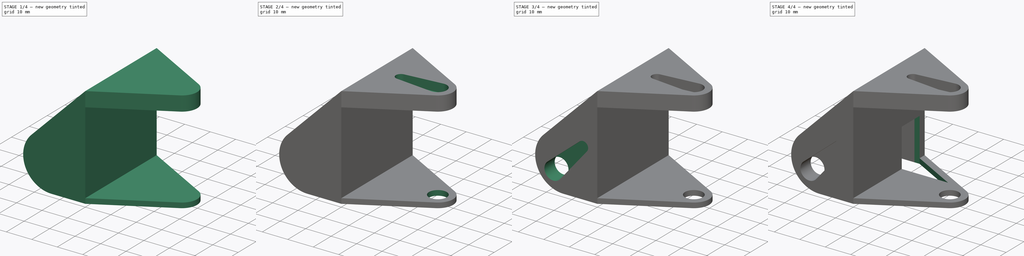
[diagram: build sequence overview — one tinted view per stage of 4, left to right]
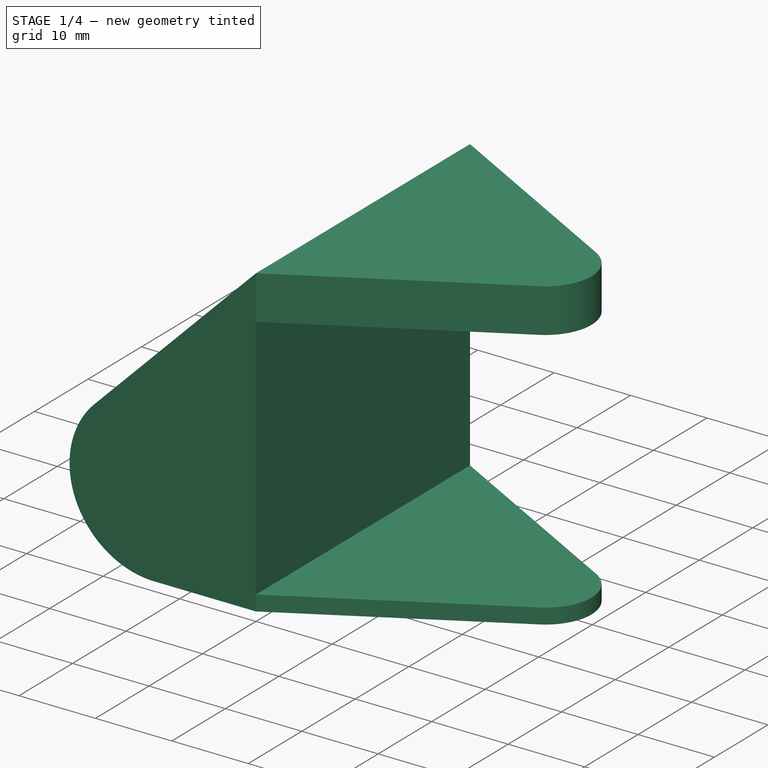
[diagram: stage 1 of 4 — iso view after this stage's code; geometry added in this stage tinted green]
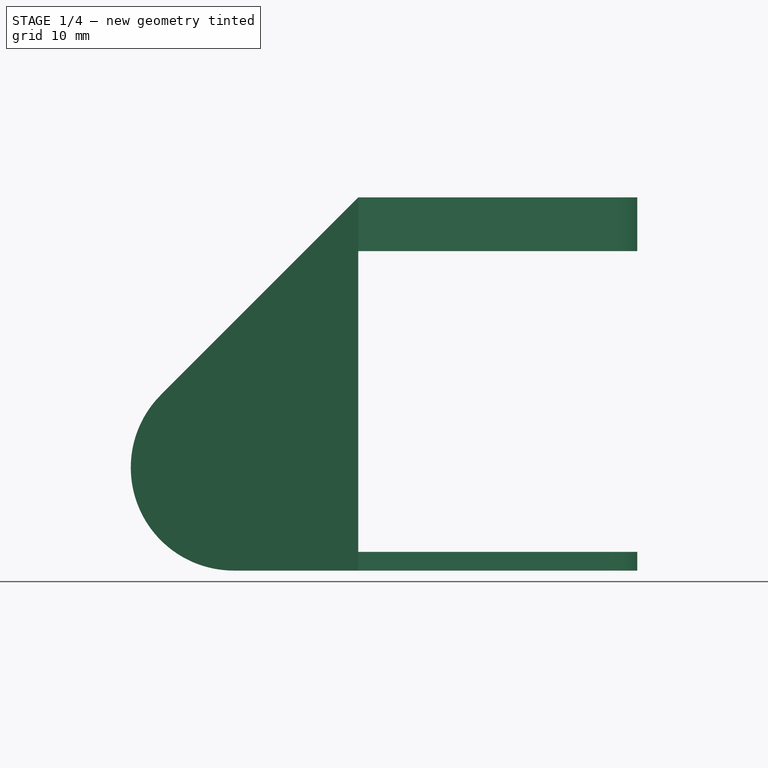
[diagram: stage 1 of 4 — front view after this stage's code; geometry added in this stage tinted green]
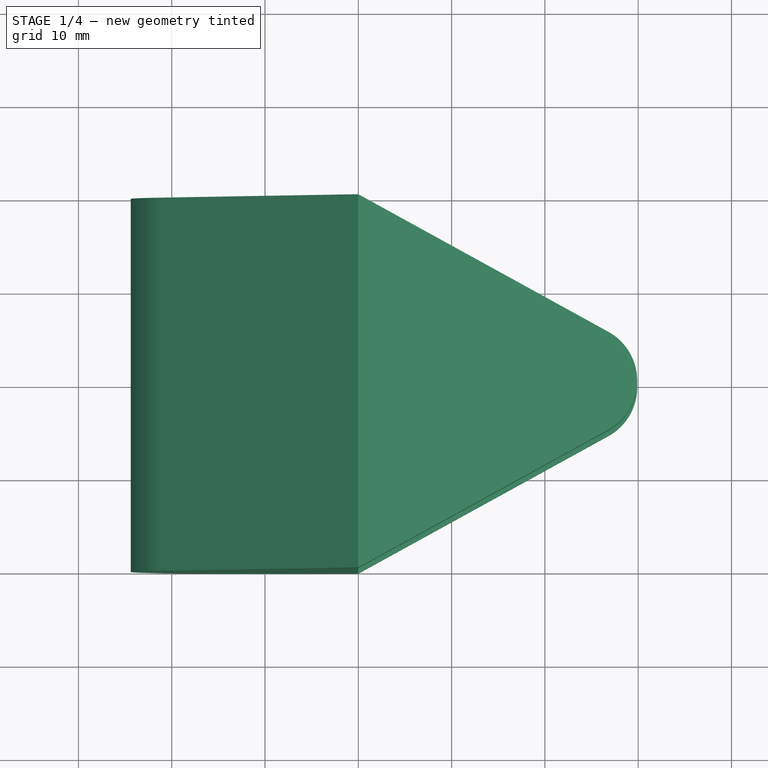
[diagram: stage 1 of 4 — top view after this stage's code; geometry added in this stage tinted green]
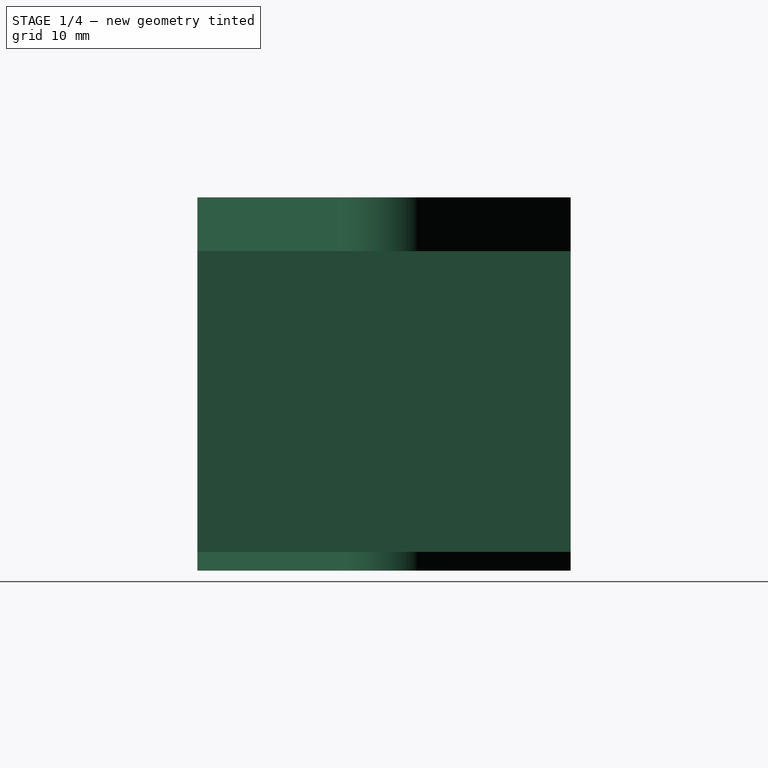
[diagram: stage 1 of 4 — right view after this stage's code; geometry added in this stage tinted green]
FCSTD DOCUMENT  (FreeCAD 0.19R)
Label: coxa
License: All rights reserved
LicenseURL: http://en.wikipedia.org/wiki/All_rights_reserved
objects: Sketcher::SketchObject×11, PartDesign::Pocket×10, PartDesign::Pad×1, PartDesign::Body×1
note: 34 computed .brp shape members not serialized (recipe doc carries the construction recipe); baked Part::Feature solids carry a one-line shape summary decoded from their .brp

FEATURE [Sketcher::SketchObject] Sketch
  MapMode = 5
  Placement = pos=(0,0,0) rot=(1,0,0;1.5708rad)
  Support = -> [XZ_Plane]
  sketch-geometry (11):
    g0: LineSegment StartX=-51.1569 StartY=18.8431 StartZ=0 EndX=-30 EndY=40 EndZ=0
    g1: LineSegment StartX=-30 StartY=40 StartZ=0 EndX=0 EndY=40 EndZ=0
    g2: LineSegment StartX=0 StartY=40 StartZ=0 EndX=0 EndY=0 EndZ=0
    g3: LineSegment StartX=0 StartY=0 StartZ=0 EndX=-43.3518 EndY=0 EndZ=0
    g4: ArcOfCircle CenterX=-43.3518 CenterY=11.0381 CenterZ=0 NormalX=0 NormalY=0 NormalZ=1 AngleXU=0 Radius=11.0381 StartAngle=2.35619 EndAngle=4.71239
    g5: LineSegment [constr] StartX=-29.3891 StartY=19.7028 StartZ=0 EndX=-22.318 EndY=12.6317 EndZ=0
    g6: LineSegment [constr] StartX=-22.318 StartY=6.26777 StartZ=0 EndX=-27.2678 EndY=1.31802 EndZ=0
    g7: LineSegment [constr] StartX=-33.6317 StartY=1.31802 StartZ=0 EndX=-40.7028 EndY=8.38909 EndZ=0
    g8: ArcOfCircle [constr] CenterX=-30.4497 CenterY=4.5 CenterZ=0 NormalX=0 NormalY=0 NormalZ=1 AngleXU=0 Radius=4.5 StartAngle=3.92699 EndAngle=5.49779
    g9: ArcOfCircle [constr] CenterX=-25.5 CenterY=9.44975 CenterZ=0 NormalX=0 NormalY=0 NormalZ=1 AngleXU=0 Radius=4.5 StartAngle=5.49779 EndAngle=7.06858
    g10: LineSegment [constr] StartX=-30 StartY=40 StartZ=0 EndX=-30 EndY=0 EndZ=0
  constraints (30):
    c: Coincident(g0,g1)
    c: Horizontal(g1)
    c: Coincident(g1,g2)
    c: Vertical(g2)
    c: Coincident(g2,g3)
    c: Horizontal(g3)
    c: Coincident(g2,g-1)
    c: Tangent(g0,g4) = 1.5708
    c: Tangent(g3,g4) = 1.5708
    c: DistanceY(g2,g2) = 40
    c: Tangent(g6,g8) = 1.5708
    c: Tangent(g7,g8) = 1.5708
    c: Tangent(g5,g9) = 1.5708
    c: Tangent(g6,g9) = 1.5708
    c: Perpendicular(g6,g5)
    c: Parallel(g7,g5)
    c: Equal(g5,g7)
    c: Equal(g8,g9)
    c: Parallel(g6,g0)
    c: Radius(g9) = 4.5
    c: Distance(g7,g5) = 16
    c: Distance(g7) = 10
    c: PointOnObject(g10,g3)
    c: Vertical(g10)
    c: Tangent(g9,g10)
    c: Tangent(g8,g3)
    c: Angle(g10,g6) = 2.35619
    c: PointOnObject(g4,g7)
    c: Coincident(g10,g0)
    c: DistanceX(g1,g1) = 30
FEATURE [PartDesign::Pad] Pad
  Length = 40
  Length2 = 100
  Placement = pos=(0,0,0) rot=(1,0,0;1.5708rad)
  Profile = -> Sketch
  Type = 0
FEATURE [Sketcher::SketchObject] Sketch001
  ExternalGeometry = -> [Pad]
  MapMode = 5
  Placement = pos=(0,0,40) rot=(0,0,1;3.14159rad)
  Support = -> [Pad]
  sketch-geometry (12):
    g0: LineSegment [constr] StartX=30 StartY=40 StartZ=0 EndX=30 EndY=0 EndZ=0
    g1: LineSegment [constr] StartX=30 StartY=0 StartZ=0 EndX=3.11565 EndY=14.7388 EndZ=0
    g2: LineSegment [constr] StartX=3.11565 StartY=25.2612 StartZ=0 EndX=30 EndY=40 EndZ=0
    g3: ArcOfCircle [constr] CenterX=6 CenterY=20 CenterZ=0 NormalX=0 NormalY=0 NormalZ=1 AngleXU=0 Radius=6 StartAngle=2.07228 EndAngle=4.21091
    g4: LineSegment [constr] StartX=3.11565 StartY=25.2612 StartZ=0 EndX=3.11565 EndY=40 EndZ=0
    g5: LineSegment [constr] StartX=3.11565 StartY=14.7388 StartZ=0 EndX=3.11565 EndY=0 EndZ=0
    g6: LineSegment StartX=30 StartY=40 StartZ=0 EndX=0 EndY=40 EndZ=0
    g7: LineSegment StartX=0 StartY=40 StartZ=0 EndX=0 EndY=0 EndZ=0
    g8: LineSegment StartX=0 StartY=0 StartZ=0 EndX=30 EndY=0 EndZ=0
    g9: LineSegment StartX=30 StartY=0 StartZ=0 EndX=3.20738 EndY=14.7433 EndZ=0
    g10: LineSegment StartX=3.20738 StartY=25.2567 StartZ=0 EndX=30 EndY=40 EndZ=0
    g11: ArcOfCircle CenterX=6.1 CenterY=20 CenterZ=0 NormalX=0 NormalY=0 NormalZ=1 AngleXU=0 Radius=6 StartAngle=2.07385 EndAngle=4.20933
  constraints (28):
    c: Coincident(g-4,g0)
    c: Coincident(g0,g-3)
    c: Coincident(g0,g1)
    c: Coincident(g2,g0)
    c: Tangent(g1,g3) = 1.5708
    c: Tangent(g2,g3) = 1.5708
    c: Tangent(g3,g-2)
    c: Coincident(g2,g4)
    c: PointOnObject(g4,g-4)
    c: Vertical(g4)
    c: Coincident(g1,g5)
    c: PointOnObject(g5,g-3)
    c: Vertical(g5)
    c: Equal(g5,g4)
    c: Radius(g3) = 6
    c: Coincident(g0,g6)
    c: Coincident(g6,g-4)
    c: Coincident(g6,g7)
    c: Coincident(g7,g-1)
    c: Coincident(g7,g8)
    c: Coincident(g8,g0)
    c: Coincident(g8,g9)
    c: Coincident(g10,g6)
    c: Tangent(g9,g11) = 1.5708
    c: Tangent(g10,g11) = 1.5708
    c: Equal(g11,g3)
    c: Horizontal(g11,g3)
    c: Distance(g3,g11) = 0.1
FEATURE [PartDesign::Pocket] Pocket
  BaseFeature = -> Pad
  Length = 5
  Length2 = 100
  Placement = pos=(0,0,0) rot=(1,0,0;1.5708rad)
  Profile = -> Sketch001
  Type = 1
FEATURE [Sketcher::SketchObject] Sketch002
  ExternalGeometry = -> [Pocket]
  MapMode = 5
  Placement = pos=(0,-40,-8.8e-15) rot=(1,0,0;1.5708rad)
  Support = -> [Pocket]
  sketch-geometry (6):
    g0: LineSegment StartX=-30 StartY=34.25 StartZ=0 EndX=0 EndY=34.25 EndZ=0
    g1: LineSegment StartX=0 StartY=34.25 StartZ=0 EndX=0 EndY=2 EndZ=0
    g2: LineSegment StartX=0 StartY=2 StartZ=0 EndX=-30 EndY=2 EndZ=0
    g3: LineSegment StartX=-30 StartY=2 StartZ=0 EndX=-30 EndY=34.25 EndZ=0
    g4: LineSegment [constr] StartX=-30 StartY=40 StartZ=0 EndX=-30 EndY=34.25 EndZ=0
    g5: LineSegment [constr] StartX=-30 StartY=2 StartZ=0 EndX=-30 EndY=0 EndZ=0
  constraints (16):
    c: Coincident(g0,g1)
    c: Coincident(g1,g2)
    c: Coincident(g2,g3)
    c: Coincident(g3,g0)
    c: Horizontal(g0)
    c: Horizontal(g2)
    c: Vertical(g1)
    c: Vertical(g3)
    c: PointOnObject(g0,g-3)
    c: Coincident(g4,g-3)
    c: Coincident(g4,g0)
    c: Coincident(g5,g2)
    c: Coincident(g5,g-3)
    c: PointOnObject(g0,g-2)
    c: DistanceY(g4,g4) = 5.75
    c: DistanceY(g5,g5) = 2
FEATURE [PartDesign::Pocket] Pocket001
  BaseFeature = -> Pocket
  Length = 5
  Length2 = 100
  Placement = pos=(0,0,0) rot=(1,0,0;1.5708rad)
  Profile = -> Sketch002
  Type = 1
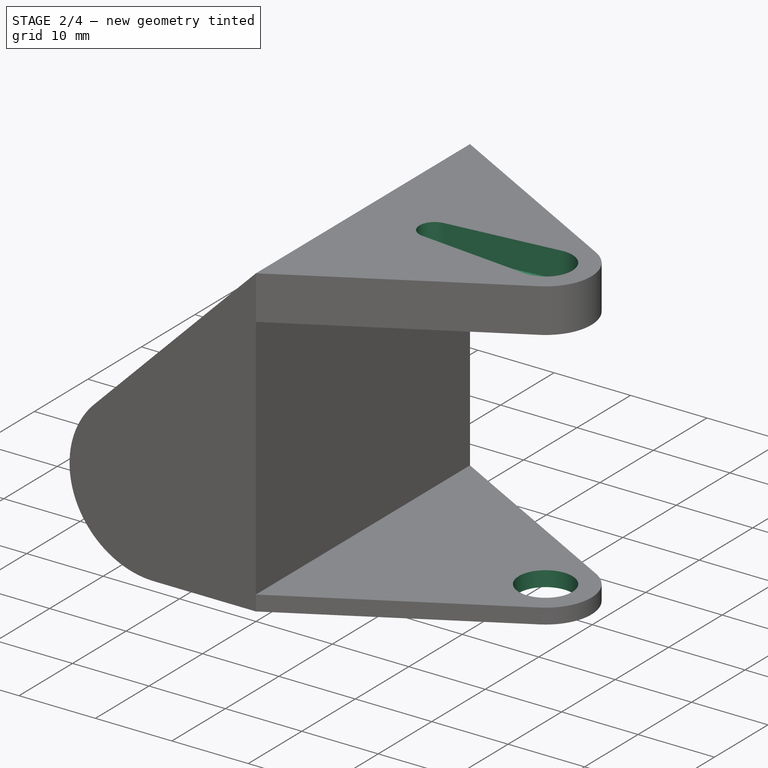
[diagram: stage 2 of 4 — iso view after this stage's code; geometry added in this stage tinted green]
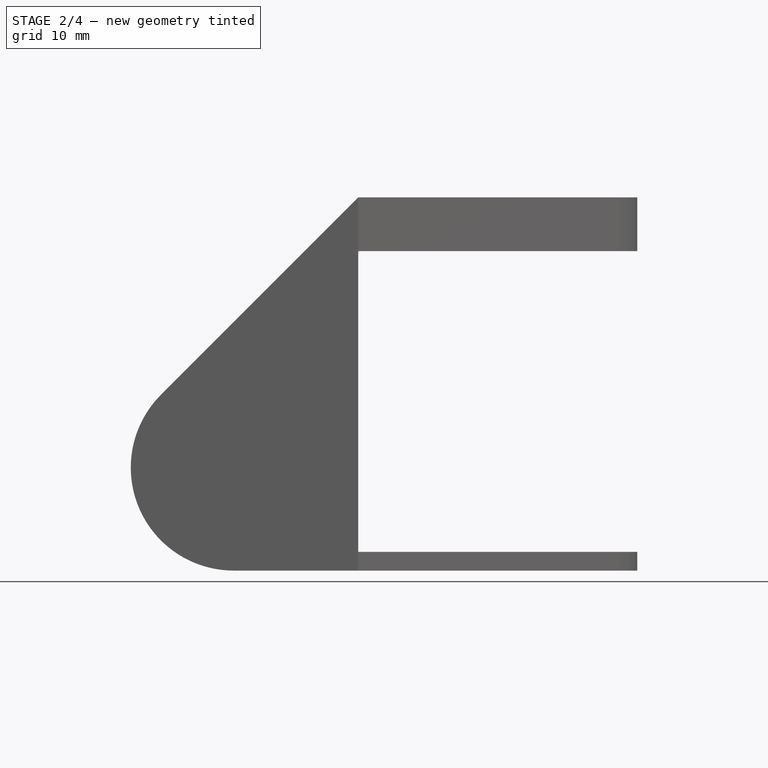
[diagram: stage 2 of 4 — front view after this stage's code; geometry added in this stage tinted green]
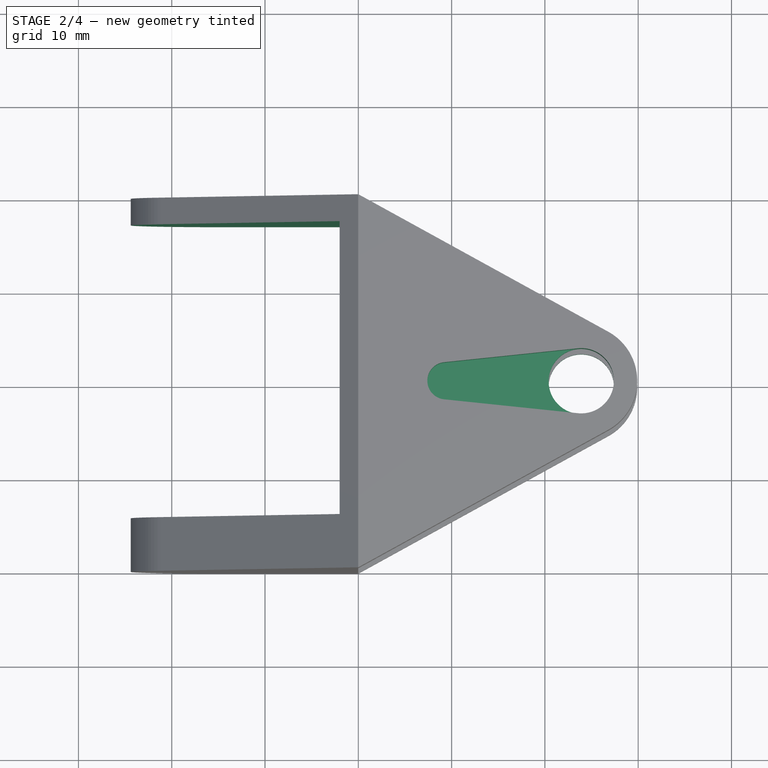
[diagram: stage 2 of 4 — top view after this stage's code; geometry added in this stage tinted green]
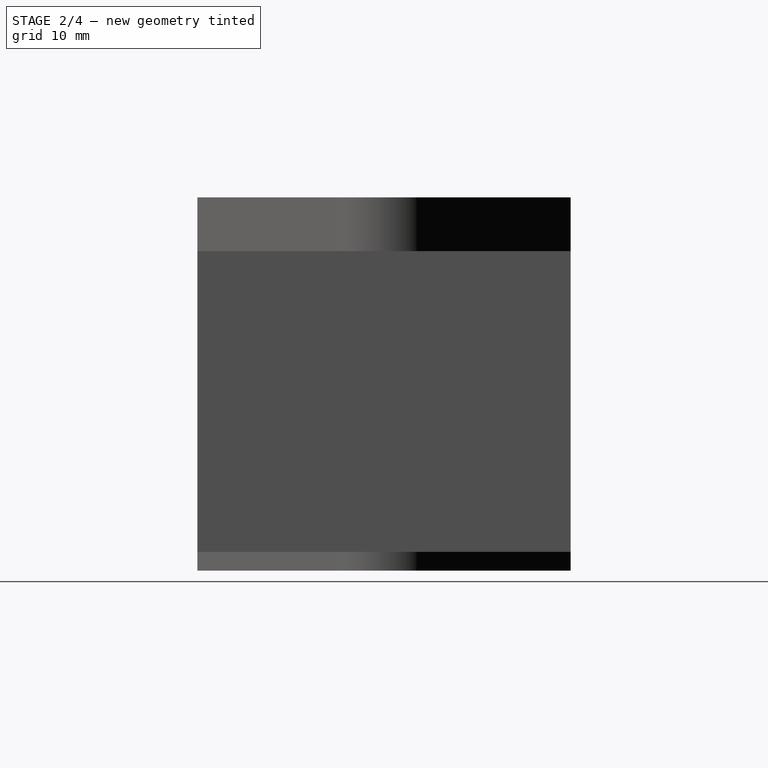
[diagram: stage 2 of 4 — right view after this stage's code; geometry added in this stage tinted green]
FEATURE [Sketcher::SketchObject] Sketch003
  ExternalGeometry = -> [Pocket001]
  MapMode = 5
  Placement = pos=(0,0,40) rot=(0,0,1;3.14159rad)
  Support = -> [Pocket001]
  sketch-geometry (7):
    g0: Circle [constr] CenterX=6.1 CenterY=20 CenterZ=0 NormalX=0 NormalY=0 NormalZ=1 AngleXU=0 Radius=3.5
    g1: LineSegment [constr] StartX=6.1 StartY=20 StartZ=0 EndX=22.6 EndY=20 EndZ=0
    g2: Circle [constr] CenterX=20.6 CenterY=20 CenterZ=0 NormalX=0 NormalY=0 NormalZ=1 AngleXU=0 Radius=2
    g3: ArcOfCircle CenterX=6.1 CenterY=20 CenterZ=0 NormalX=0 NormalY=0 NormalZ=1 AngleXU=0 Radius=3.5 StartAngle=1.46716 EndAngle=4.81602
    g4: ArcOfCircle CenterX=20.6 CenterY=20 CenterZ=0 NormalX=0 NormalY=0 NormalZ=1 AngleXU=0 Radius=2 StartAngle=4.81602 EndAngle=7.75035
    g5: LineSegment StartX=6.46207 StartY=23.4812 StartZ=0 EndX=20.8069 EndY=21.9893 EndZ=0
    g6: LineSegment StartX=6.46207 StartY=16.5188 StartZ=0 EndX=20.8069 EndY=18.0107 EndZ=0
  constraints (20):
    c: Coincident(g0,g-3)
    c: Radius(g0) = 3.5
    c: Coincident(g1,g0)
    c: Horizontal(g1)
    c: DistanceX(g1,g1) = 16.5
    c: Radius(g2) = 2
    c: PointOnObject(g2,g1)
    c: PointOnObject(g1,g2)
    c: Coincident(g3,g0)
    c: PointOnObject(g3,g0)
    c: Coincident(g4,g2)
    c: PointOnObject(g4,g2)
    c: Coincident(g5,g3)
    c: Coincident(g5,g4)
    c: Coincident(g6,g3)
    c: Coincident(g6,g4)
    c: Tangent(g3,g5) = 1.5708
    c: Tangent(g3,g6) = -1.5708
    c: Tangent(g4,g5) = 1.5708
    c: Tangent(g4,g6) = -1.5708
FEATURE [PartDesign::Pocket] Pocket002
  BaseFeature = -> Pocket001
  Length = 3.5
  Length2 = 100
  Placement = pos=(0,0,0) rot=(1,0,0;1.5708rad)
  Profile = -> Sketch003
  Type = 0
FEATURE [Sketcher::SketchObject] Sketch004
  ExternalGeometry = -> [Pocket002]
  MapMode = 5
  Placement = pos=(0,0,36.5) rot=(0,0,1;3.14159rad)
  Support = -> [Pocket002]
  sketch-geometry (1):
    g0: Circle CenterX=6.1 CenterY=20 CenterZ=0 NormalX=0 NormalY=0 NormalZ=1 AngleXU=0 Radius=3.5
  constraints (2):
    c: Coincident(g0,g-3)
    c: Equal(g-3,g0)
FEATURE [PartDesign::Pocket] Pocket003
  BaseFeature = -> Pocket002
  Length = 5
  Length2 = 100
  Placement = pos=(0,0,0) rot=(1,0,0;1.5708rad)
  Profile = -> Sketch004
  Type = 1
FEATURE [Sketcher::SketchObject] Sketch005
  ExternalGeometry = -> [Pocket003]
  MapMode = 5
  Placement = pos=(0,0,0) rot=(1,0,0;3.14159rad)
  Support = -> [Pocket003]
  sketch-geometry (4):
    g0: LineSegment StartX=-57 StartY=34.25 StartZ=0 EndX=-32 EndY=34.25 EndZ=0
    g1: LineSegment StartX=-32 StartY=34.25 StartZ=0 EndX=-32 EndY=2.85 EndZ=0
    g2: LineSegment StartX=-32 StartY=2.85 StartZ=0 EndX=-57 EndY=2.85 EndZ=0
    g3: LineSegment StartX=-57 StartY=2.85 StartZ=0 EndX=-57 EndY=34.25 EndZ=0
  constraints (12):
    c: Coincident(g0,g1)
    c: Coincident(g1,g2)
    c: Coincident(g2,g3)
    c: Coincident(g3,g0)
    c: Horizontal(g0)
    c: Horizontal(g2)
    c: Vertical(g1)
    c: Vertical(g3)
    c: Distance(g0,g-3) = 2
    c: DistanceY(g-1,g1) = 2.85
    c: Distance(g0,g-4) = 5.75
    c: DistanceX(g0,g0) = 25
FEATURE [PartDesign::Pocket] Pocket004
  BaseFeature = -> Pocket003
  Length = 5
  Length2 = 100
  Placement = pos=(0,0,0) rot=(1,0,0;1.5708rad)
  Profile = -> Sketch005
  Type = 1
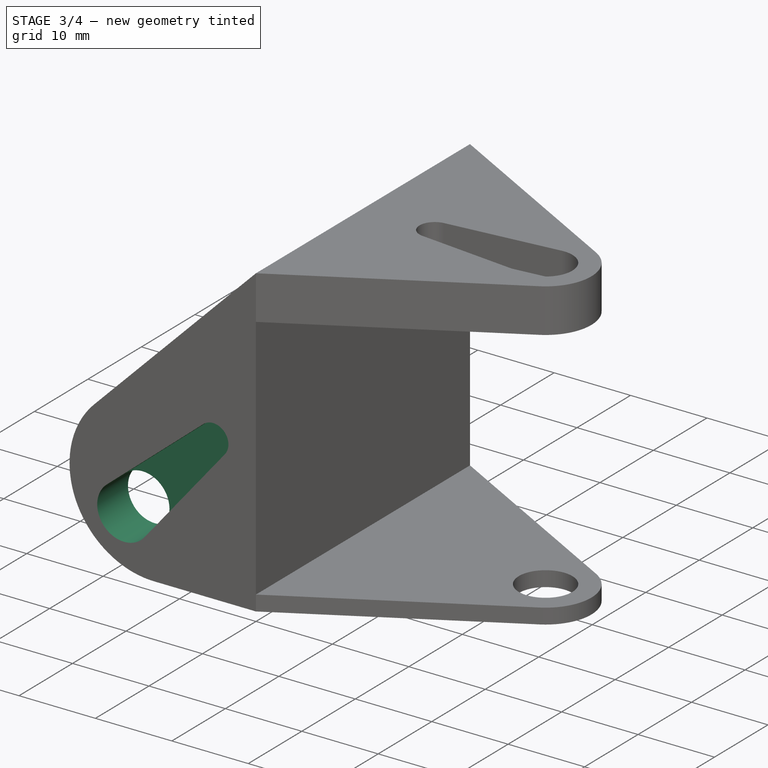
[diagram: stage 3 of 4 — iso view after this stage's code; geometry added in this stage tinted green]
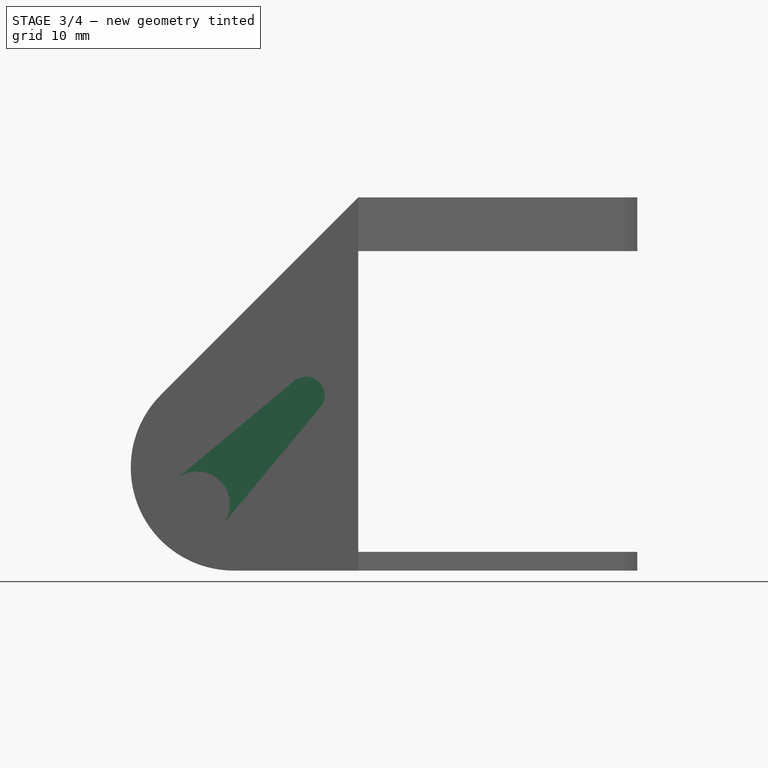
[diagram: stage 3 of 4 — front view after this stage's code; geometry added in this stage tinted green]
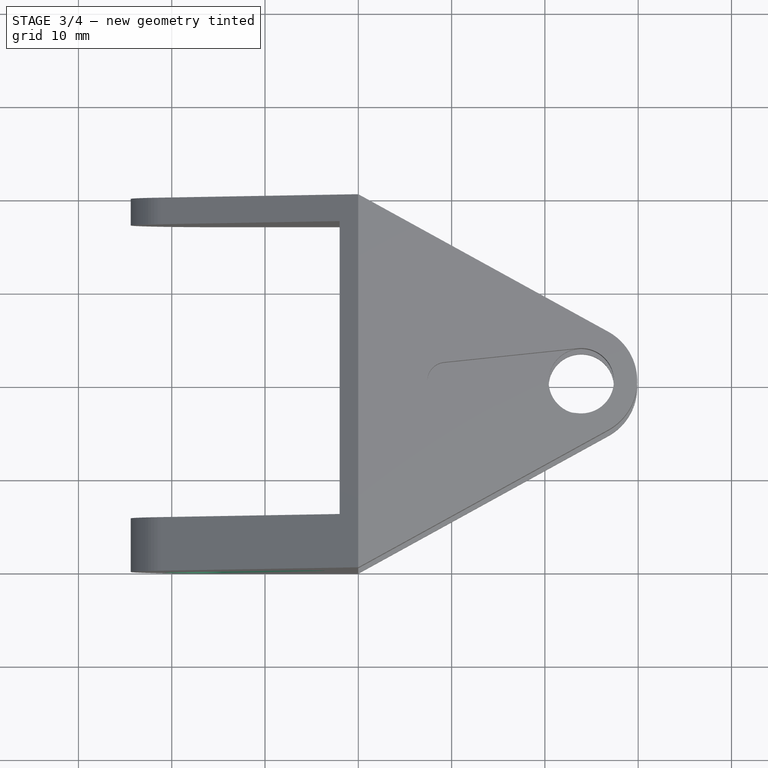
[diagram: stage 3 of 4 — top view after this stage's code; geometry added in this stage tinted green]
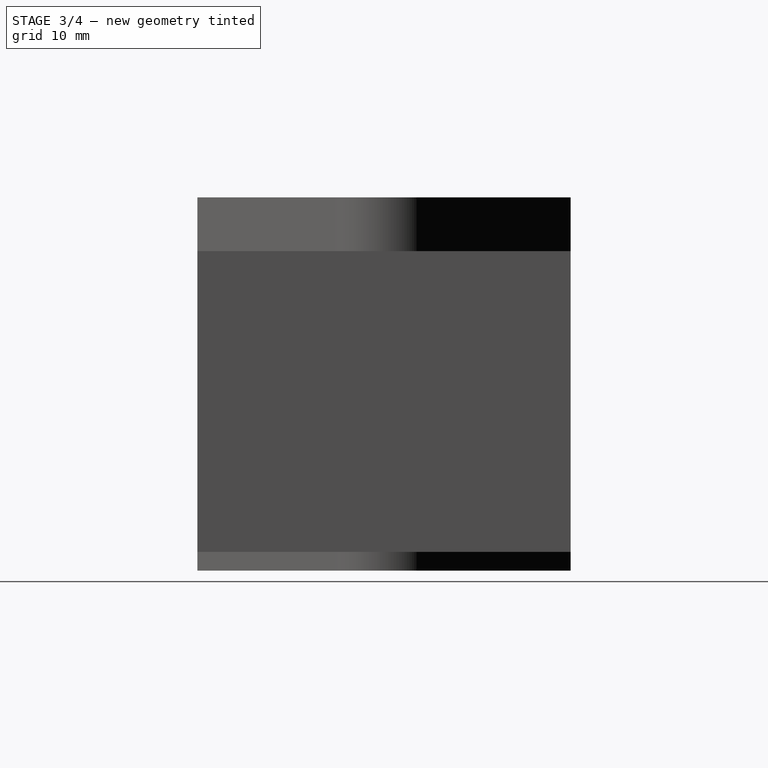
[diagram: stage 3 of 4 — right view after this stage's code; geometry added in this stage tinted green]
FEATURE [Sketcher::SketchObject] Sketch006
  ExternalGeometry = -> [Pocket004]
  MapMode = 5
  Placement = pos=(0,-40,-8.8e-15) rot=(1,0,0;1.5708rad)
  Support = -> [Pocket004]
  sketch-geometry (8):
    g0: Circle [constr] CenterX=-47.2678 CenterY=7.12206 CenterZ=0 NormalX=0 NormalY=0 NormalZ=1 AngleXU=0 Radius=3.5
    g1: Circle [constr] CenterX=-35.6005 CenterY=18.7893 CenterZ=0 NormalX=0 NormalY=0 NormalZ=1 AngleXU=0 Radius=2
    g2: LineSegment [constr] StartX=-47.2678 StartY=7.12206 StartZ=0 EndX=-35.6005 EndY=18.7893 EndZ=0
    g3: LineSegment [constr] StartX=-47.2678 StartY=7.12206 StartZ=0 EndX=-51.1569 EndY=3.23297 EndZ=0
    g4: ArcOfCircle CenterX=-47.2678 CenterY=7.12206 CenterZ=0 NormalX=0 NormalY=0 NormalZ=1 AngleXU=0 Radius=3.5 StartAngle=2.26516 EndAngle=5.58882
    g5: ArcOfCircle CenterX=-35.6005 CenterY=18.7893 CenterZ=0 NormalX=0 NormalY=0 NormalZ=1 AngleXU=0 Radius=2 StartAngle=5.58882 EndAngle=8.54835
    g6: LineSegment StartX=-49.5074 StartY=9.81167 StartZ=0 EndX=-36.8803 EndY=20.3262 EndZ=0
    g7: LineSegment StartX=-44.5782 StartY=4.88242 StartZ=0 EndX=-34.0636 EndY=17.5095 EndZ=0
  constraints (19):
    c: Radius(g1) = 2
    c: Radius(g0) = 3.5
    c: Coincident(g2,g0)
    c: Coincident(g2,g1)
    c: Distance(g2) = 16.5
    c: Parallel(g-3,g2)
    c: PointOnObject(g-4,g2)
    c: Coincident(g3,g0)
    c: PointOnObject(g3,g-4)
    c: Parallel(g3,g-3)
    c: Distance(g3) = 5.5
    c: Equal(g5,g1)
    c: Equal(g4,g0)
    c: Tangent(g6,g4) = 1.5708
    c: Tangent(g7,g4) = -1.5708
    c: Tangent(g7,g5) = -1.5708
    c: Tangent(g6,g5) = 1.5708
    c: Coincident(g4,g0)
    c: Coincident(g5,g1)
FEATURE [PartDesign::Pocket] Pocket005
  BaseFeature = -> Pocket004
  Length = 3.5
  Length2 = 100
  Placement = pos=(0,0,0) rot=(1,0,0;1.5708rad)
  Profile = -> Sketch006
  Type = 0
FEATURE [Sketcher::SketchObject] Sketch007
  ExternalGeometry = -> [Pocket005]
  MapMode = 5
  Placement = pos=(1.02e-14,-36.5,1.02e-14) rot=(1,0,0;1.5708rad)
  Support = -> [Pocket005]
  sketch-geometry (1):
    g0: Circle CenterX=-47.2678 CenterY=7.12206 CenterZ=0 NormalX=0 NormalY=0 NormalZ=1 AngleXU=0 Radius=3.5
  constraints (2):
    c: Coincident(g0,g-3)
    c: Equal(g0,g-3)
FEATURE [PartDesign::Pocket] Pocket006
  BaseFeature = -> Pocket005
  Length = 5
  Length2 = 100
  Placement = pos=(0,0,0) rot=(1,0,0;1.5708rad)
  Profile = -> Sketch007
  Type = 0
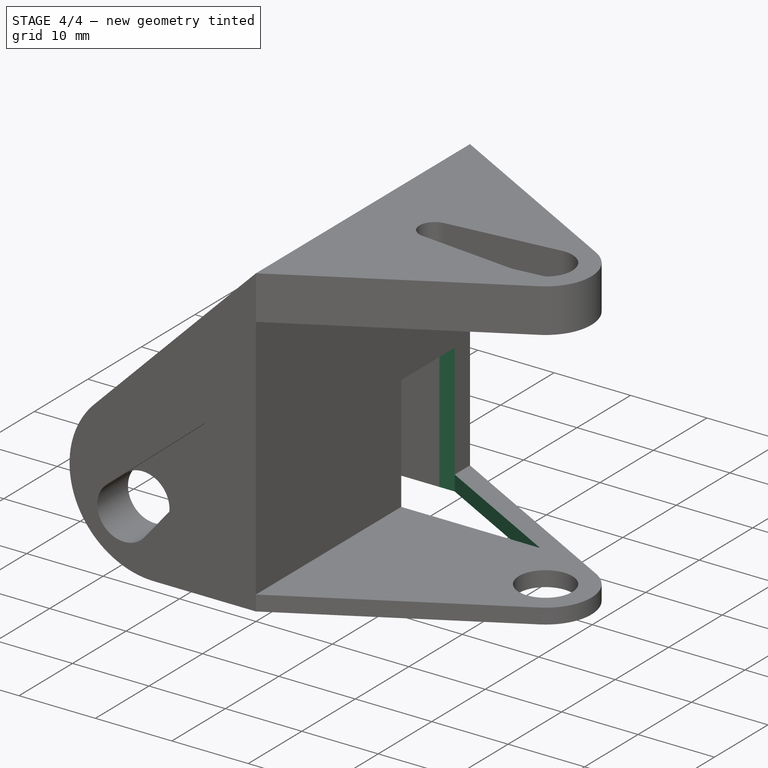
[diagram: stage 4 of 4 — iso view after this stage's code; geometry added in this stage tinted green]
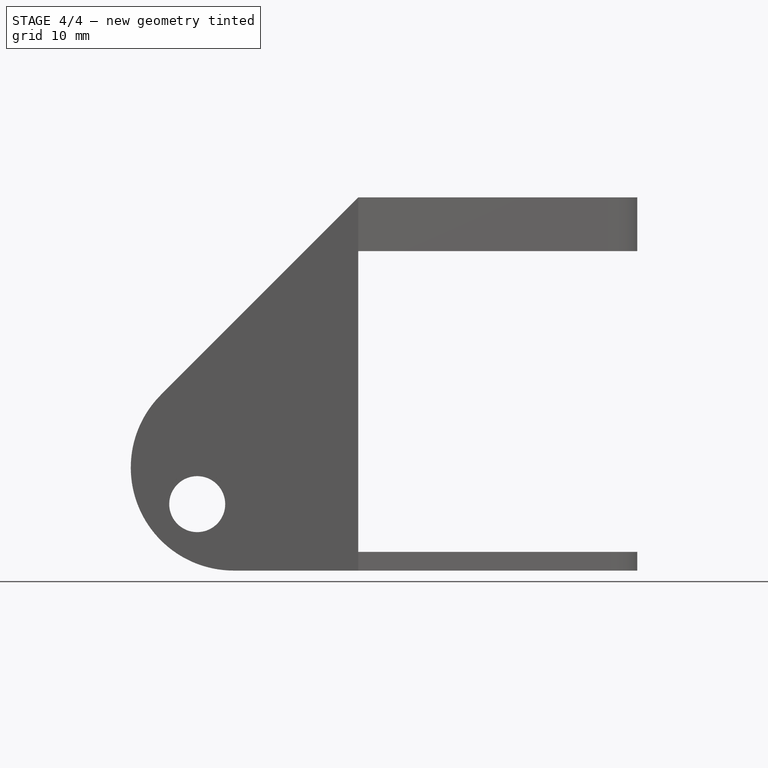
[diagram: stage 4 of 4 — front view after this stage's code; geometry added in this stage tinted green]
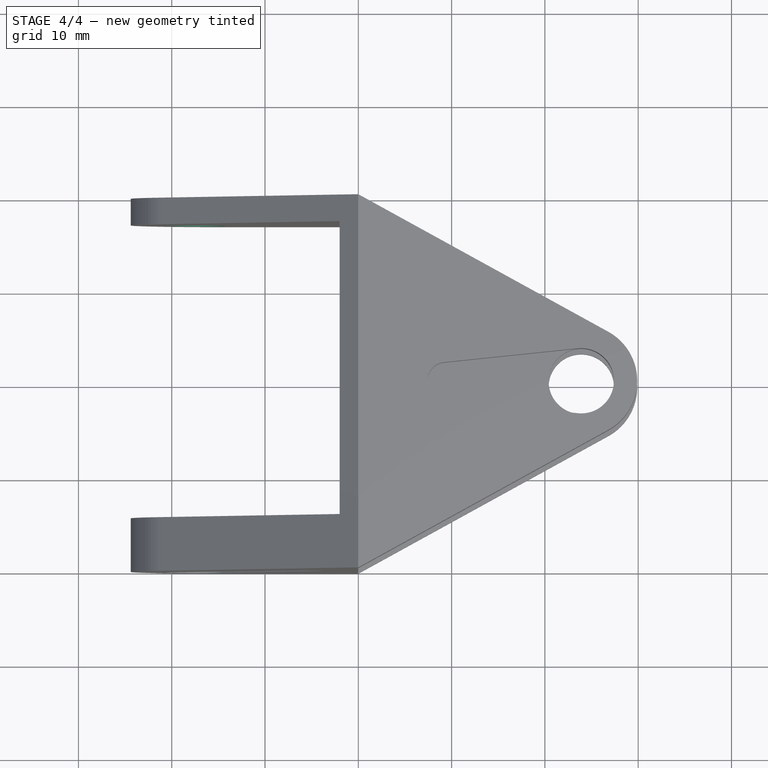
[diagram: stage 4 of 4 — top view after this stage's code; geometry added in this stage tinted green]
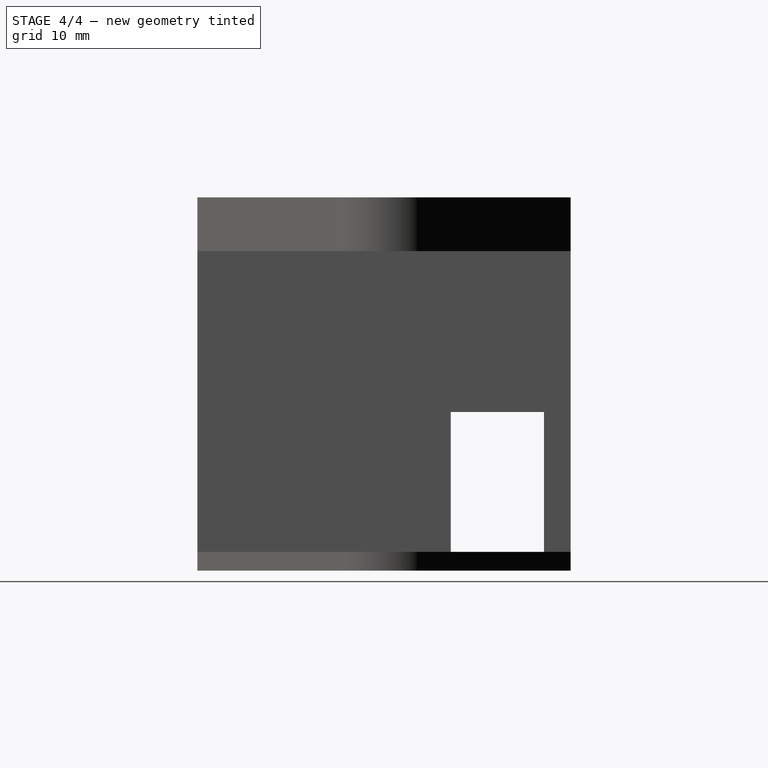
[diagram: stage 4 of 4 — right view after this stage's code; geometry added in this stage tinted green]
FEATURE [Sketcher::SketchObject] Sketch008
  ExternalGeometry = -> [Pocket006]
  MapMode = 5
  Placement = pos=(0,-2.85,3e-16) rot=(1,0,0;1.5708rad)
  Support = -> [Pocket006]
  sketch-geometry (1):
    g0: Circle CenterX=-47.2678 CenterY=7.12206 CenterZ=0 NormalX=0 NormalY=0 NormalZ=1 AngleXU=0 Radius=3
  constraints (2):
    c: Coincident(g0,g-3)
    c: Radius(g0) = 3
FEATURE [PartDesign::Pocket] Pocket007
  BaseFeature = -> Pocket006
  Length = 5
  Length2 = 100
  Placement = pos=(0,0,0) rot=(1,0,0;1.5708rad)
  Profile = -> Sketch008
  Type = 1
FEATURE [Sketcher::SketchObject] Sketch009
  ExternalGeometry = -> [Pocket007]
  MapMode = 5
  Placement = pos=(-32,0,0) rot=(0.707107,0,-0.707107;3.14159rad)
  Support = -> [Pocket007]
  sketch-geometry (4):
    g0: LineSegment StartX=-17 StartY=12.85 StartZ=0 EndX=-2 EndY=12.85 EndZ=0
    g1: LineSegment StartX=-2 StartY=12.85 StartZ=0 EndX=-2 EndY=2.85 EndZ=0
    g2: LineSegment StartX=-2 StartY=2.85 StartZ=0 EndX=-17 EndY=2.85 EndZ=0
    g3: LineSegment StartX=-17 StartY=2.85 StartZ=0 EndX=-17 EndY=12.85 EndZ=0
  constraints (12):
    c: Coincident(g0,g1)
    c: Coincident(g1,g2)
    c: Coincident(g2,g3)
    c: Coincident(g3,g0)
    c: Horizontal(g0)
    c: Horizontal(g2)
    c: Vertical(g1)
    c: Vertical(g3)
    c: DistanceY(g1,g1) = 10
    c: DistanceX(g0,g0) = 15
    c: DistanceX(g-2,g1) = -2
    c: PointOnObject(g2,g-3)
FEATURE [PartDesign::Pocket] Pocket008
  BaseFeature = -> Pocket007
  Length = 2
  Length2 = 100
  Placement = pos=(0,0,0) rot=(1,0,0;1.5708rad)
  Profile = -> Sketch009
  Type = 0
FEATURE [Sketcher::SketchObject] Sketch010
  ExternalGeometry = -> [Pocket008]
  MapMode = 5
  Placement = pos=(0,0,0) rot=(1,0,0;3.14159rad)
  Support = -> [Pocket008]
  sketch-geometry (4):
    g0: LineSegment StartX=-32 StartY=12.85 StartZ=0 EndX=-11.8273 EndY=12.85 EndZ=0
    g1: LineSegment StartX=-11.8273 StartY=12.85 StartZ=0 EndX=-30 EndY=2.85 EndZ=0
    g2: LineSegment StartX=-32 StartY=12.85 StartZ=0 EndX=-32 EndY=2.85 EndZ=0
    g3: LineSegment StartX=-32 StartY=2.85 StartZ=0 EndX=-30 EndY=2.85 EndZ=0
  constraints (9):
    c: Horizontal(g0)
    c: Coincident(g0,g1)
    c: Parallel(g1,g-3)
    c: Coincident(g0,g-4)
    c: Coincident(g1,g-5)
    c: Coincident(g0,g2)
    c: Coincident(g2,g-5)
    c: Coincident(g2,g3)
    c: Coincident(g3,g1)
FEATURE [PartDesign::Pocket] Pocket009
  BaseFeature = -> Pocket008
  Length = 3
  Length2 = 100
  Placement = pos=(0,0,0) rot=(1,0,0;1.5708rad)
  Profile = -> Sketch010
  Type = 0
FEATURE [PartDesign::Body] Body
  Group = -> [Sketch,Pad,Sketch001,Pocket,Sketch002,Pocket001,Sketch003,Pocket002,Sketch004,Pocket003,Sketch005,Pocket004,Sketch006,Pocket005,Sketch007,Pocket006,Sketch008,Pocket007,Sketch009,Pocket008,Sketch010,Pocket009]
  Origin = -> Origin
  Tip = -> Pocket009
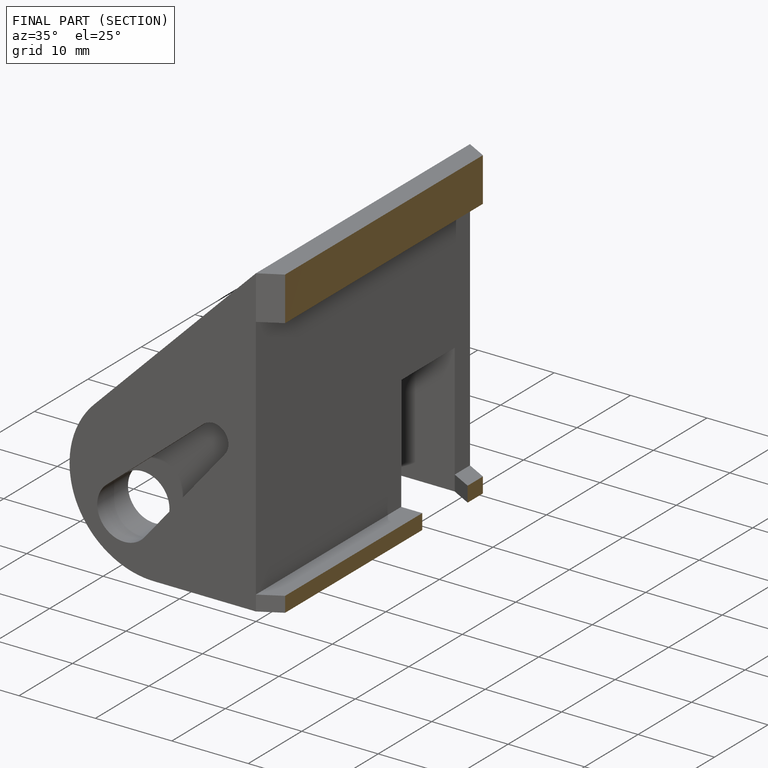
[diagram: finished part — half-section view (interior)]
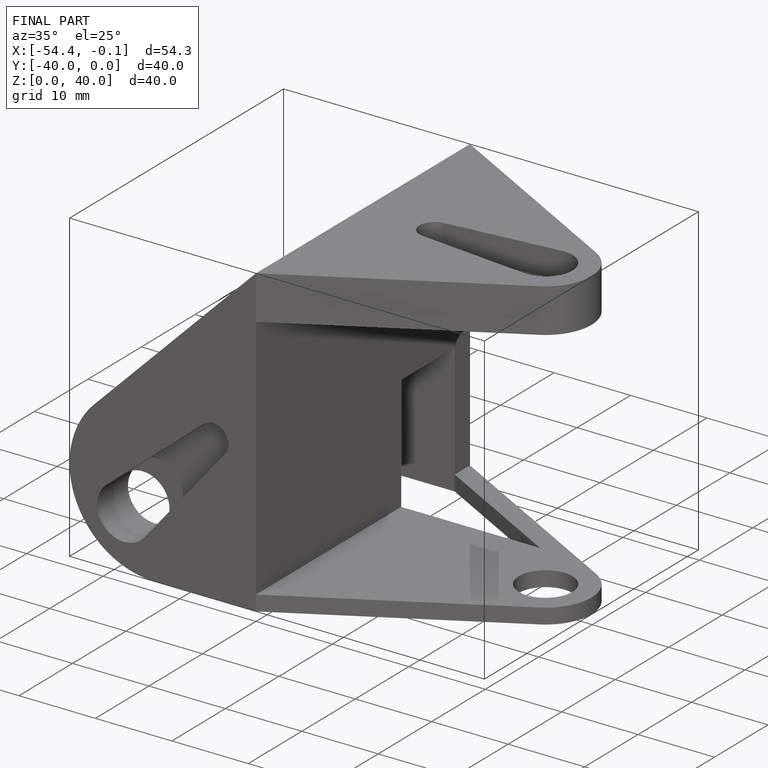
[diagram: finished part — iso view with bounding-box wireframe]
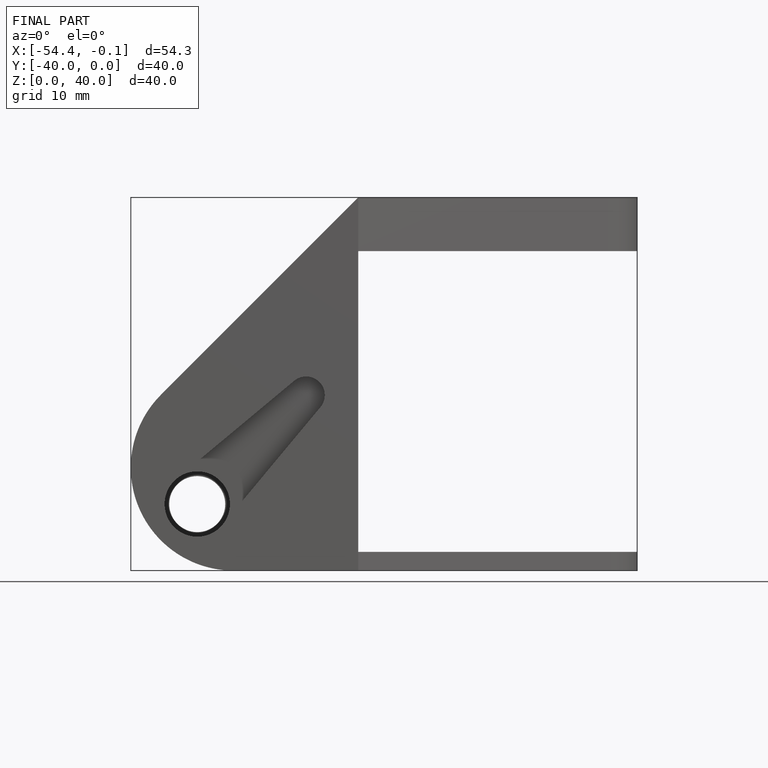
[diagram: finished part — front view with bounding-box wireframe]
